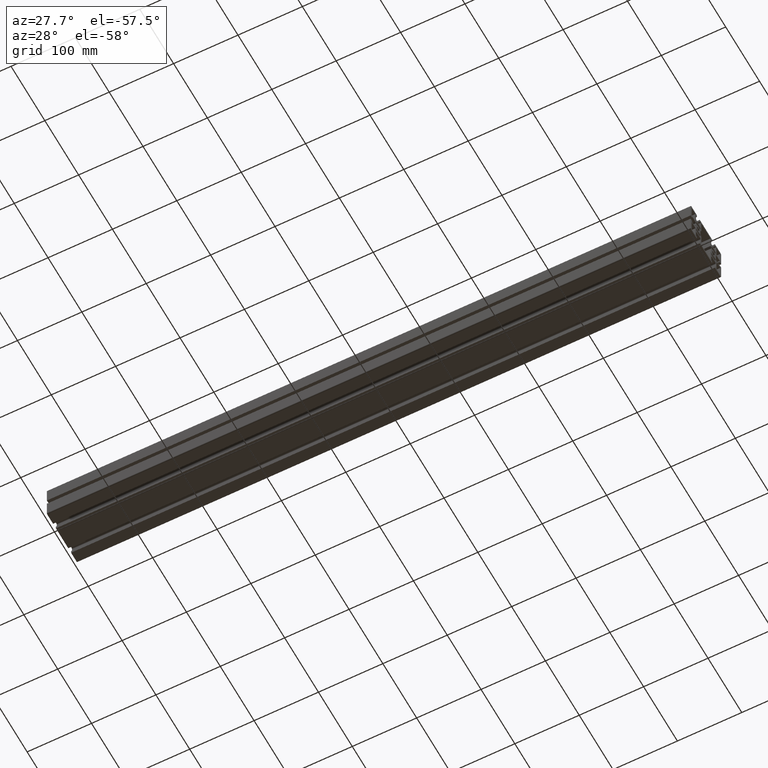
[diagram: clean part render]
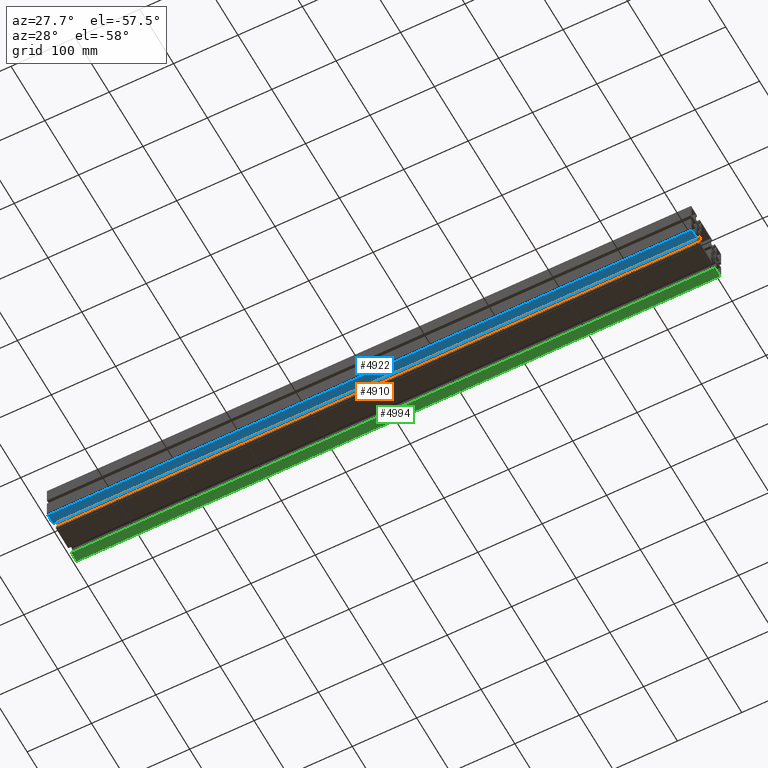
[diagram: same view with three faces highlighted in distinct colors, each labeled with its STEP entity id]
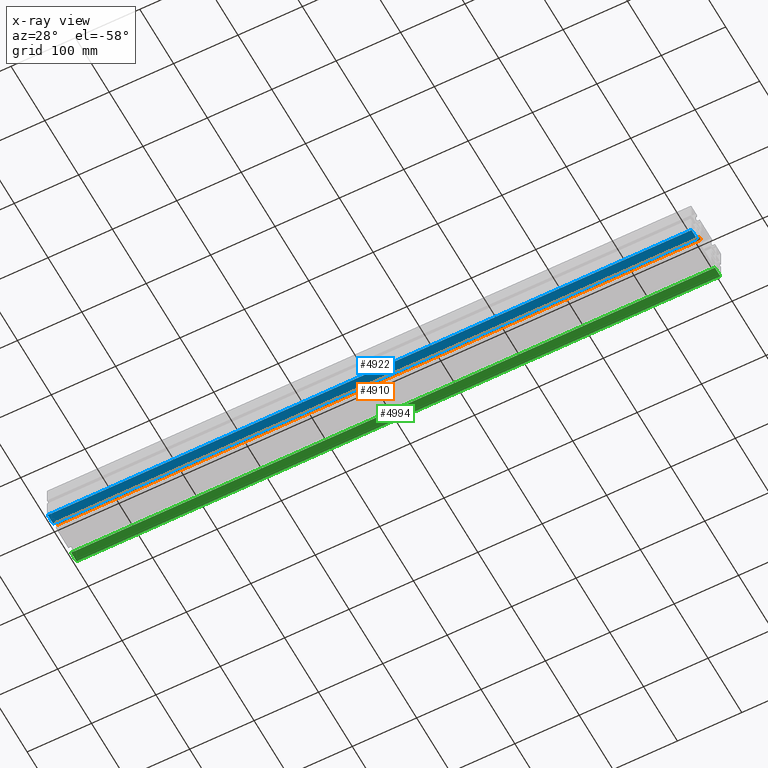
[diagram: x-ray of the same camera — body ghosted, the three highlighted faces saturated]
A machine part, auxiliary view with three faces highlighted in distinct colors.
The next image is the same camera in x-ray (body ghosted, the three faces saturated) — at least one of them is partly hidden behind the body in this view.
Their STEP definitions:

[orange] entity #4910 — the highlighted cylindrical surface (edge-blend (fillet) strip) has radius 3.2 mm, axis along (1, 0, 0).
#105=CIRCLE('',#5246,3.19999999999983);
#106=CIRCLE('',#5247,3.19999999999983);
#207=CYLINDRICAL_SURFACE('',#5245,3.19999999999983);
#382=FACE_OUTER_BOUND('',#626,.T.);
#626=EDGE_LOOP('',(#3705,#3706,#3707,#3708));
#1106=LINE('',#7617,#1696);
#1107=LINE('',#7623,#1697);
#1696=VECTOR('',#6191,10.);
#1697=VECTOR('',#6198,10.);
#2213=VERTEX_POINT('',#7613);
#2214=VERTEX_POINT('',#7615);
#2215=VERTEX_POINT('',#7619);
#2216=VERTEX_POINT('',#7621);
#2838=EDGE_CURVE('',#2213,#2214,#1106,.T.);
#2839=EDGE_CURVE('',#2213,#2215,#105,.T.);
#2840=EDGE_CURVE('',#2216,#2214,#106,.T.);
#2841=EDGE_CURVE('',#2215,#2216,#1107,.T.);
#3705=ORIENTED_EDGE('',*,*,#2839,.F.);
#3706=ORIENTED_EDGE('',*,*,#2838,.T.);
#3707=ORIENTED_EDGE('',*,*,#2840,.F.);
#3708=ORIENTED_EDGE('',*,*,#2841,.F.);
#4910=ADVANCED_FACE('',(#382),#207,.F.);
#5245=AXIS2_PLACEMENT_3D('',#7618,#6192,#6193);
#5246=AXIS2_PLACEMENT_3D('',#7620,#6194,#6195);
#5247=AXIS2_PLACEMENT_3D('',#7622,#6196,#6197);
#6191=DIRECTION('',(1.,0.,0.));
#6192=DIRECTION('center_axis',(1.,0.,0.));
#6193=DIRECTION('ref_axis',(0.,1.,-1.38777878078152E-15));
#6194=DIRECTION('center_axis',(1.,0.,0.));
#6195=DIRECTION('ref_axis',(0.,1.,-1.38777878078152E-15));
#6196=DIRECTION('center_axis',(-1.,0.,0.));
#6197=DIRECTION('ref_axis',(0.,1.,-1.38777878078152E-15));
#6198=DIRECTION('',(1.,0.,0.));
#7613=CARTESIAN_POINT('',(0.,6.90004999999886,-17.8999999999999));
#7615=CARTESIAN_POINT('',(1000.,6.90004999999886,-17.8999999999999));
#7617=CARTESIAN_POINT('',(0.,6.90004999999886,-17.8999999999999));
#7618=CARTESIAN_POINT('Origin',(0.,3.70004999999903,-17.8999999999999));
#7619=CARTESIAN_POINT('',(0.,3.70004999999916,-14.7));
#7620=CARTESIAN_POINT('Origin',(0.,3.70004999999903,-17.8999999999999));
#7621=CARTESIAN_POINT('',(1000.,3.70004999999916,-14.7));
#7622=CARTESIAN_POINT('Origin',(1000.,3.70004999999903,-17.8999999999999));
#7623=CARTESIAN_POINT('',(0.,3.70004999999916,-14.7));

[blue] entity #4922 — the highlighted planar face has unit normal (0, -0, -1).
#394=FACE_OUTER_BOUND('',#638,.T.);
#638=EDGE_LOOP('',(#3753,#3754,#3755,#3756));
#1132=LINE('',#7689,#1722);
#1133=LINE('',#7692,#1723);
#1134=LINE('',#7694,#1724);
#1135=LINE('',#7695,#1725);
#1722=VECTOR('',#6261,10.);
#1723=VECTOR('',#6264,10.);
#1724=VECTOR('',#6265,10.);
#1725=VECTOR('',#6266,10.);
#2237=VERTEX_POINT('',#7685);
#2238=VERTEX_POINT('',#7687);
#2239=VERTEX_POINT('',#7691);
#2240=VERTEX_POINT('',#7693);
#2874=EDGE_CURVE('',#2237,#2238,#1132,.T.);
#2875=EDGE_CURVE('',#2237,#2239,#1133,.T.);
#2876=EDGE_CURVE('',#2240,#2238,#1134,.T.);
#2877=EDGE_CURVE('',#2239,#2240,#1135,.T.);
#3753=ORIENTED_EDGE('',*,*,#2875,.F.);
#3754=ORIENTED_EDGE('',*,*,#2874,.T.);
#3755=ORIENTED_EDGE('',*,*,#2876,.F.);
#3756=ORIENTED_EDGE('',*,*,#2877,.F.);
#4707=PLANE('',#5267);
#4922=ADVANCED_FACE('',(#394),#4707,.T.);
#5267=AXIS2_PLACEMENT_3D('',#7690,#6262,#6263);
#6261=DIRECTION('',(1.,0.,0.));
#6262=DIRECTION('center_axis',(0.,-2.80182466782358E-16,-1.));
#6263=DIRECTION('ref_axis',(0.,1.,-2.80182466782358E-16));
#6264=DIRECTION('',(0.,-1.,2.80182466782358E-16));
#6265=DIRECTION('',(0.,1.,-2.80182466782358E-16));
#6266=DIRECTION('',(1.,0.,0.));
#7685=CARTESIAN_POINT('',(0.,-4.15000000000241,-29.9999999999997));
#7687=CARTESIAN_POINT('',(1000.,-4.15000000000241,-29.9999999999997));
#7689=CARTESIAN_POINT('',(0.,-4.15000000000241,-29.9999999999997));
#7690=CARTESIAN_POINT('Origin',(0.,-20.0000000000033,-29.9999999999997));
#7691=CARTESIAN_POINT('',(0.,-20.0000000000033,-29.9999999999997));
#7692=CARTESIAN_POINT('',(0.,-4.15000000000241,-29.9999999999997));
#7693=CARTESIAN_POINT('',(1000.,-20.0000000000033,-29.9999999999997));
#7694=CARTESIAN_POINT('',(1000.,-4.15000000000241,-29.9999999999997));
#7695=CARTESIAN_POINT('',(0.,-20.0000000000033,-29.9999999999997));

[green] entity #4994 — the highlighted planar face has unit normal (0, -0, -1).
#466=FACE_OUTER_BOUND('',#710,.T.);
#710=EDGE_LOOP('',(#4041,#4042,#4043,#4044));
#1300=LINE('',#8121,#1890);
#1301=LINE('',#8124,#1891);
#1302=LINE('',#8126,#1892);
#1303=LINE('',#8127,#1893);
#1890=VECTOR('',#6669,10.);
#1891=VECTOR('',#6672,10.);
#1892=VECTOR('',#6673,10.);
#1893=VECTOR('',#6674,10.);
#2381=VERTEX_POINT('',#8117);
#2382=VERTEX_POINT('',#8119);
#2383=VERTEX_POINT('',#8123);
#2384=VERTEX_POINT('',#8125);
#3090=EDGE_CURVE('',#2381,#2382,#1300,.T.);
#3091=EDGE_CURVE('',#2381,#2383,#1301,.T.);
#3092=EDGE_CURVE('',#2384,#2382,#1302,.T.);
#3093=EDGE_CURVE('',#2383,#2384,#1303,.T.);
#4041=ORIENTED_EDGE('',*,*,#3091,.F.);
#4042=ORIENTED_EDGE('',*,*,#3090,.T.);
#4043=ORIENTED_EDGE('',*,*,#3092,.F.);
#4044=ORIENTED_EDGE('',*,*,#3093,.F.);
#4755=PLANE('',#5387);
#4994=ADVANCED_FACE('',(#466),#4755,.T.);
#5387=AXIS2_PLACEMENT_3D('',#8122,#6670,#6671);
#6669=DIRECTION('',(1.,0.,0.));
#6670=DIRECTION('center_axis',(0.,-2.80182466782375E-16,-1.));
#6671=DIRECTION('ref_axis',(0.,1.,-2.80182466782375E-16));
#6672=DIRECTION('',(0.,-1.,2.80182466782375E-16));
#6673=DIRECTION('',(0.,1.,-2.80182466782375E-16));
#6674=DIRECTION('',(1.,0.,0.));
#8117=CARTESIAN_POINT('',(0.,65.000000000001,-29.9999999999999));
#8119=CARTESIAN_POINT('',(1000.,65.000000000001,-29.9999999999999));
#8121=CARTESIAN_POINT('',(0.,65.000000000001,-29.9999999999999));
#8122=CARTESIAN_POINT('Origin',(0.,49.1500000000011,-29.9999999999999));
#8123=CARTESIAN_POINT('',(0.,49.1500000000011,-29.9999999999999));
#8124=CARTESIAN_POINT('',(0.,65.000000000001,-29.9999999999999));
#8125=CARTESIAN_POINT('',(1000.,49.1500000000011,-29.9999999999999));
#8126=CARTESIAN_POINT('',(1000.,65.000000000001,-29.9999999999999));
#8127=CARTESIAN_POINT('',(0.,49.1500000000011,-29.9999999999999));